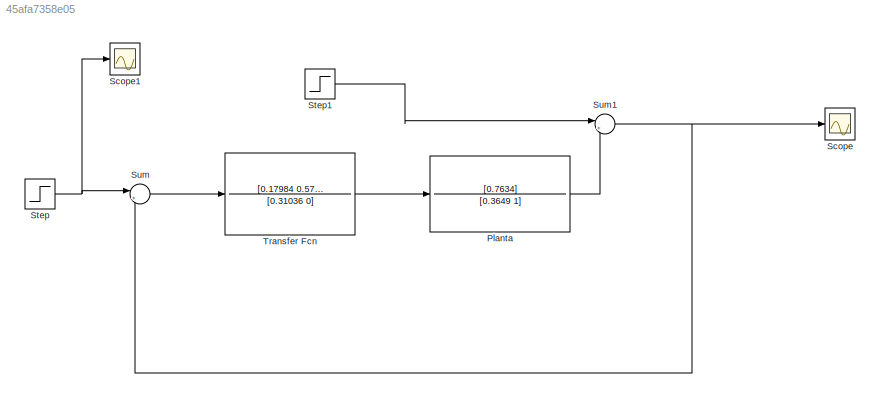
MODEL slx_45afa7358e05
KIND model
CONFIG AbsTol = auto
CONFIG EnableMultiTasking = off
CONFIG FixedStep = auto
CONFIG MaxStep = auto
CONFIG MinStep = auto
CONFIG RelTol = 1e-3
CONFIG SampleTimeConstraint = Unconstrained
CONFIG SolverName = VariableStepAuto
CONFIG StartTime = 0.0
CONFIG StopTime = 10.0
BLOCK [TransferFcn] Planta
  Denominator = [0.3649 1]
  Numerator = [0.7634]
BLOCK [Scope] Scope
  Floating = off
  NumInputPorts = 1
  ScopeSpecificationString = Simulink.scopes.TimeScopeBlockCfg('CurrentConfiguration', extmgr.ConfigurationSet(extmgr.Configuration('Core','General UI',true),extmgr.Configuration('Core','Source UI',true),extmgr.Configuration('Sources','WiredSimulink',true),extmgr.Configuration('Visuals','Time Domain',true,'SerializedDisplays',{struct('MinYLimReal','-13870713.17331','MaxYLimReal','124836418.55979','YLabelReal','','MinYLimMag',...<+1498ch>
BLOCK [Scope] Scope1
  Floating = off
  NumInputPorts = 1
  ScopeSpecificationString = Simulink.scopes.TimeScopeBlockCfg('CurrentConfiguration', extmgr.ConfigurationSet(extmgr.Configuration('Core','General UI',true),extmgr.Configuration('Core','Source UI',true),extmgr.Configuration('Sources','WiredSimulink',true,'DataLoggingVariableName','ScopeData1'),extmgr.Configuration('Visuals','Time Domain',true,'SerializedDisplays',{struct('MinYLimReal','50.00000','MaxYLimReal','250.00000','YL...<+1491ch>
BLOCK [Step] Step
  After = 120
  Before = 150
  SampleTime = 0
  Time = 22
BLOCK [Step] Step1
  After = 50
  SampleTime = 0.01
  Time = 25
BLOCK [Sum] Sum
  Inputs = |++
BLOCK [Sum] Sum1
  Inputs = |++
BLOCK [TransferFcn] Transfer Fcn
  Denominator = [0.31036 0]
  Numerator = [0.17984 0.57946]
LINE Planta:1 -> Sum1:2
LINE Step1:1 -> Sum1:1
NET Step:1 -> Scope1:1, Sum:1
NET Sum1:1 -> Scope:1, Sum:2
LINE Sum:1 -> Transfer Fcn:1
LINE Transfer Fcn:1 -> Planta:1
note: NET lines group one-source signal fan-out (src -> all destinations, sorted); 1:1 wires keep LINE
